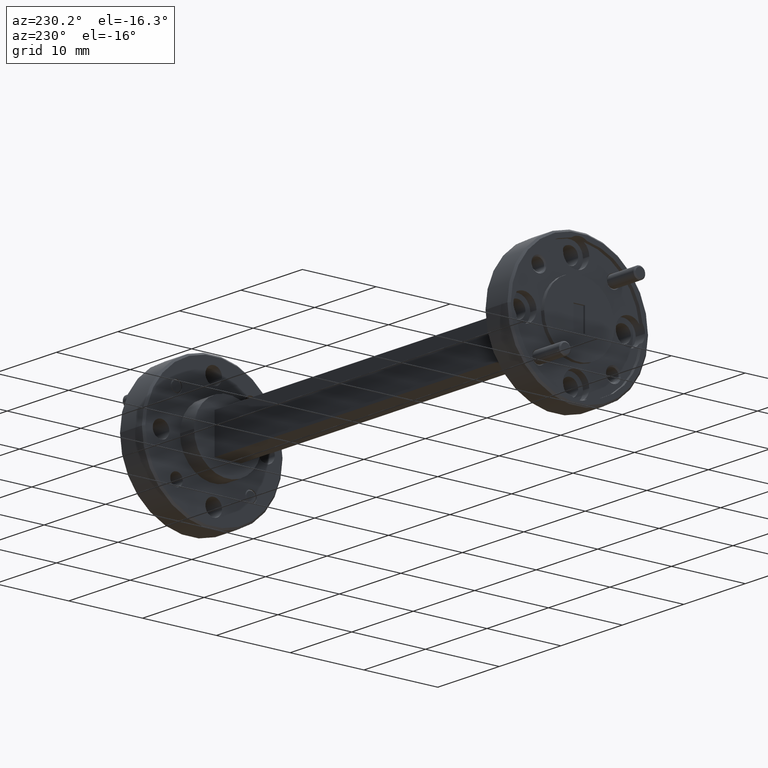
[diagram: clean part render]
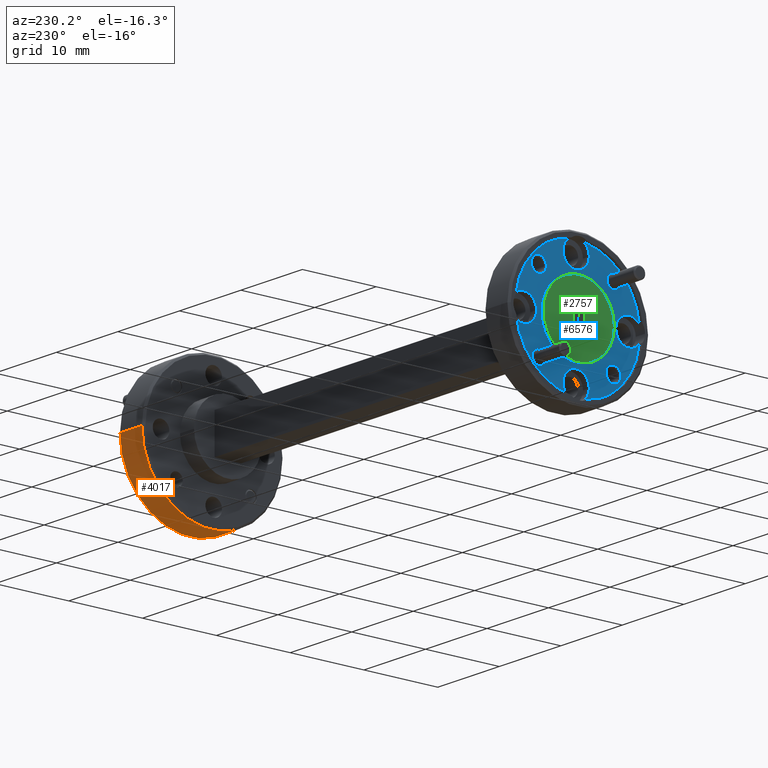
[diagram: same view with three faces highlighted in distinct colors, each labeled with its STEP entity id]
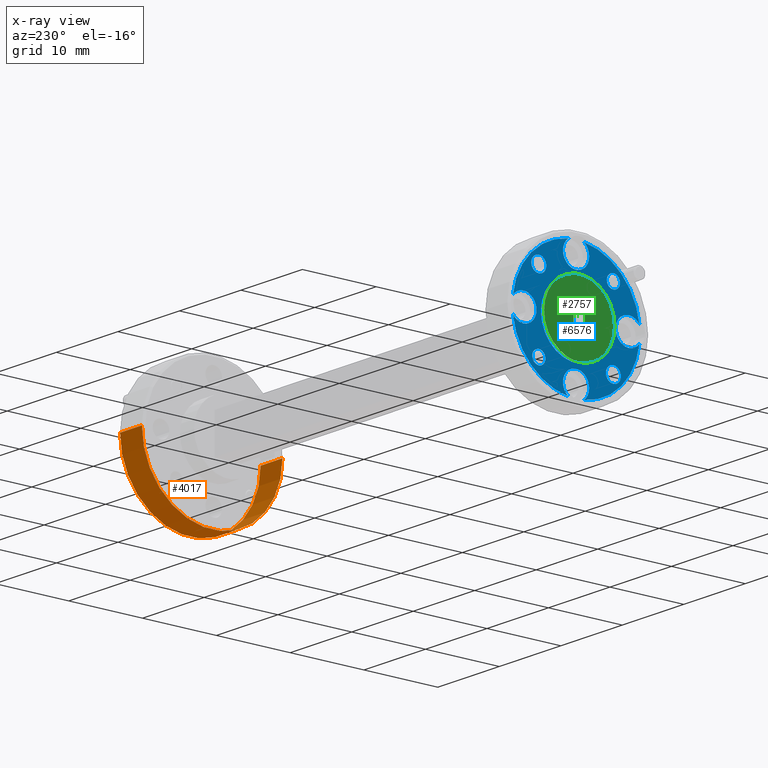
[diagram: x-ray of the same camera — body ghosted, the three highlighted faces saturated]
A machine part, auxiliary view with three faces highlighted in distinct colors.
The next image is the same camera in x-ray (body ghosted, the three faces saturated) — at least one of them is partly hidden behind the body in this view.
Their STEP definitions:

[orange] entity #4017 — the highlighted cylindrical surface (partial cylindrical patch) has radius 9.525 mm, axis along (1, 0, -0).
#542 = EDGE_CURVE ( 'NONE', #3401, #2770, #3679, .T. ) ;
#783 = CYLINDRICAL_SURFACE ( 'NONE', #3634, 0.3749999999999993894 ) ;
#814 = CARTESIAN_POINT ( 'NONE',  ( 1.831945884671742908, 1.715015889200941501, 2.884611598569149393 ) ) ;
#898 = AXIS2_PLACEMENT_3D ( 'NONE', #6566, #3077, #5992 ) ;
#928 = ORIENTED_EDGE ( 'NONE', *, *, #1703, .T. ) ;
#1199 = LINE ( 'NONE', #1878, #2131 ) ;
#1385 = DIRECTION ( 'NONE',  ( 1.000000000000000000, 1.224646799147353454E-16, -0.000000000000000000 ) ) ;
#1389 = DIRECTION ( 'NONE',  ( 0.000000000000000000, 1.000000000000000000, 0.000000000000000000 ) ) ;
#1703 = EDGE_CURVE ( 'NONE', #2770, #7430, #1199, .T. ) ;
#1878 = CARTESIAN_POINT ( 'NONE',  ( -0.6580541153284433786, 2.465015889200940613, 2.884611598569149393 ) ) ;
#2031 = CARTESIAN_POINT ( 'NONE',  ( 1.831945884671742908, 2.465015889200941057, 2.884611598569149393 ) ) ;
#2131 = VECTOR ( 'NONE', #2355, 39.37007874015748143 ) ;
#2355 = DIRECTION ( 'NONE',  ( 1.000000000000000000, 1.224646799147353454E-16, -0.000000000000000000 ) ) ;
#2408 = AXIS2_PLACEMENT_3D ( 'NONE', #5187, #4016, #6391 ) ;
#2770 = VERTEX_POINT ( 'NONE', #6960 ) ;
#2811 = ORIENTED_EDGE ( 'NONE', *, *, #5194, .F. ) ;
#2902 = ORIENTED_EDGE ( 'NONE', *, *, #542, .T. ) ;
#3070 = EDGE_CURVE ( 'NONE', #7430, #5867, #4225, .T. ) ;
#3077 = DIRECTION ( 'NONE',  ( 1.000000000000000000, 1.224646799147367998E-16, -0.000000000000000000 ) ) ;
#3401 = VERTEX_POINT ( 'NONE', #3962 ) ;
#3634 = AXIS2_PLACEMENT_3D ( 'NONE', #4275, #6569, #1389 ) ;
#3675 = ORIENTED_EDGE ( 'NONE', *, *, #3070, .T. ) ;
#3679 = CIRCLE ( 'NONE', #898, 0.3749999999999996669 ) ;
#3712 = FACE_OUTER_BOUND ( 'NONE', #6399, .T. ) ;
#3962 = CARTESIAN_POINT ( 'NONE',  ( 1.691945884671743228, 1.715015889200941501, 2.884611598569149393 ) ) ;
#4016 = DIRECTION ( 'NONE',  ( -1.000000000000000000, -1.224646799147307355E-16, 0.000000000000000000 ) ) ;
#4017 = ADVANCED_FACE ( 'NONE', ( #3712 ), #783, .T. ) ;
#4151 = VECTOR ( 'NONE', #1385, 39.37007874015748143 ) ;
#4222 = LINE ( 'NONE', #4926, #4151 ) ;
#4225 = CIRCLE ( 'NONE', #2408, 0.3749999999999996669 ) ;
#4275 = CARTESIAN_POINT ( 'NONE',  ( -0.6580541153284433786, 2.090015889200941057, 2.884611598569149393 ) ) ;
#4926 = CARTESIAN_POINT ( 'NONE',  ( -0.6580541153284433786, 1.715015889200941501, 2.884611598569149393 ) ) ;
#5187 = CARTESIAN_POINT ( 'NONE',  ( 1.831945884671742908, 2.090015889200941057, 2.884611598569149393 ) ) ;
#5194 = EDGE_CURVE ( 'NONE', #3401, #5867, #4222, .T. ) ;
#5867 = VERTEX_POINT ( 'NONE', #814 ) ;
#5992 = DIRECTION ( 'NONE',  ( 0.000000000000000000, -1.000000000000000000, 0.000000000000000000 ) ) ;
#6391 = DIRECTION ( 'NONE',  ( 0.000000000000000000, 1.000000000000000000, 0.000000000000000000 ) ) ;
#6399 = EDGE_LOOP ( 'NONE', ( #2811, #2902, #928, #3675 ) ) ;
#6566 = CARTESIAN_POINT ( 'NONE',  ( 1.691945884671743228, 2.090015889200941057, 2.884611598569149393 ) ) ;
#6569 = DIRECTION ( 'NONE',  ( 1.000000000000000000, 1.224646799147353454E-16, -0.000000000000000000 ) ) ;
#6960 = CARTESIAN_POINT ( 'NONE',  ( 1.691945884671743228, 2.465015889200941057, 2.884611598569149393 ) ) ;
#7430 = VERTEX_POINT ( 'NONE', #2031 ) ;

[blue] entity #6576 — the highlighted planar face has unit normal (-1, -0, 0).
#18 = ORIENTED_EDGE ( 'NONE', *, *, #6635, .F. ) ;
#38 = DIRECTION ( 'NONE',  ( 0.000000000000000000, 1.000000000000000000, 0.000000000000000000 ) ) ;
#56 = DIRECTION ( 'NONE',  ( 0.000000000000000000, -1.000000000000000000, 0.000000000000000000 ) ) ;
#59 = VERTEX_POINT ( 'NONE', #2693 ) ;
#72 = DIRECTION ( 'NONE',  ( 1.000000000000000000, 1.224646799147353454E-16, -0.000000000000000000 ) ) ;
#83 = CARTESIAN_POINT ( 'NONE',  ( -0.6380541153282570654, 2.427440889200940699, 2.926377246834200641 ) ) ;
#124 = VERTEX_POINT ( 'NONE', #1889 ) ;
#145 = EDGE_CURVE ( 'NONE', #3553, #5614, #5394, .T. ) ;
#147 = CARTESIAN_POINT ( 'NONE',  ( -0.6380541153282570654, 2.131781537465992304, 3.222036598569149035 ) ) ;
#292 = CIRCLE ( 'NONE', #6572, 0.04000000000000011879 ) ;
#318 = EDGE_CURVE ( 'NONE', #3001, #2302, #4430, .T. ) ;
#410 = DIRECTION ( 'NONE',  ( 0.000000000000000000, 1.000000000000000000, 0.000000000000000000 ) ) ;
#414 = DIRECTION ( 'NONE',  ( 0.000000000000000000, 1.000000000000000000, 0.000000000000000000 ) ) ;
#428 = EDGE_CURVE ( 'NONE', #4018, #1740, #791, .T. ) ;
#444 = ORIENTED_EDGE ( 'NONE', *, *, #2659, .F. ) ;
#449 = AXIS2_PLACEMENT_3D ( 'NONE', #771, #5390, #56 ) ;
#488 = DIRECTION ( 'NONE',  ( -1.000000000000000000, -1.224646799147353454E-16, 0.000000000000000000 ) ) ;
#577 = EDGE_CURVE ( 'NONE', #1740, #4018, #6588, .T. ) ;
#771 = CARTESIAN_POINT ( 'NONE',  ( -0.6380541153282570654, 2.090015889200941057, 3.165861598569149393 ) ) ;
#791 = CIRCLE ( 'NONE', #5852, 0.04000000000000011879 ) ;
#840 = AXIS2_PLACEMENT_3D ( 'NONE', #1066, #2828, #6387 ) ;
#848 = CARTESIAN_POINT ( 'NONE',  ( -0.6380541153282570654, 2.277515889200940613, 2.884611598569149393 ) ) ;
#962 = EDGE_CURVE ( 'NONE', #2062, #3355, #5576, .T. ) ;
#992 = CARTESIAN_POINT ( 'NONE',  ( -0.6380541153282570654, 2.090015889200941057, 3.165861598569149393 ) ) ;
#1066 = CARTESIAN_POINT ( 'NONE',  ( -0.6380541153282570654, 2.371265889200941057, 2.884611598569149393 ) ) ;
#1073 = AXIS2_PLACEMENT_3D ( 'NONE', #3600, #7092, #3759 ) ;
#1091 = CARTESIAN_POINT ( 'NONE',  ( -0.6380541153282578426, 1.891142106992224070, 2.725737816360433552 ) ) ;
#1118 = EDGE_LOOP ( 'NONE', ( #444, #3316 ) ) ;
#1124 = EDGE_CURVE ( 'NONE', #1792, #7329, #6427, .T. ) ;
#1141 = CARTESIAN_POINT ( 'NONE',  ( -0.6380541153282570654, 2.090015889200941057, 2.884611598569149393 ) ) ;
#1163 = EDGE_CURVE ( 'NONE', #124, #3895, #5110, .T. ) ;
#1169 = VERTEX_POINT ( 'NONE', #7486 ) ;
#1183 = EDGE_CURVE ( 'NONE', #4081, #7367, #5328, .T. ) ;
#1208 = AXIS2_PLACEMENT_3D ( 'NONE', #2448, #1350, #6027 ) ;
#1212 = VERTEX_POINT ( 'NONE', #1726 ) ;
#1223 = CARTESIAN_POINT ( 'NONE',  ( -0.6380541153282570654, 2.048250240935888922, 2.547186598569149307 ) ) ;
#1256 = CARTESIAN_POINT ( 'NONE',  ( -0.6380541153282570654, 1.808765889200941057, 2.884611598569149393 ) ) ;
#1290 = DIRECTION ( 'NONE',  ( -1.000000000000000000, -1.224646799147353454E-16, 0.000000000000000000 ) ) ;
#1297 = ORIENTED_EDGE ( 'NONE', *, *, #7365, .T. ) ;
#1340 = VERTEX_POINT ( 'NONE', #5165 ) ;
#1349 = EDGE_CURVE ( 'NONE', #59, #1169, #3447, .T. ) ;
#1350 = DIRECTION ( 'NONE',  ( -1.000000000000000000, -1.224646799147353454E-16, 0.000000000000000000 ) ) ;
#1356 = PLANE ( 'NONE',  #5549 ) ;
#1392 = AXIS2_PLACEMENT_3D ( 'NONE', #4790, #4128, #1845 ) ;
#1411 = EDGE_CURVE ( 'NONE', #5157, #59, #5876, .T. ) ;
#1472 = EDGE_LOOP ( 'NONE', ( #1297, #2369 ) ) ;
#1504 = DIRECTION ( 'NONE',  ( -1.000000000000000000, -1.224646799147353454E-16, 0.000000000000000000 ) ) ;
#1532 = AXIS2_PLACEMENT_3D ( 'NONE', #4375, #7385, #2763 ) ;
#1583 = AXIS2_PLACEMENT_3D ( 'NONE', #4596, #5250, #6948 ) ;
#1605 = DIRECTION ( 'NONE',  ( 0.000000000000000000, 0.000000000000000000, 1.000000000000000000 ) ) ;
#1655 = VERTEX_POINT ( 'NONE', #83 ) ;
#1683 = DIRECTION ( 'NONE',  ( 0.000000000000000000, 0.000000000000000000, 1.000000000000000000 ) ) ;
#1726 = CARTESIAN_POINT ( 'NONE',  ( -0.6380541153282570654, 2.020015889200940773, 3.165861598569149393 ) ) ;
#1740 = VERTEX_POINT ( 'NONE', #2312 ) ;
#1757 = CARTESIAN_POINT ( 'NONE',  ( -0.6380541153282570654, 2.020015889200940773, 2.603361598569148949 ) ) ;
#1786 = EDGE_LOOP ( 'NONE', ( #2497, #3606 ) ) ;
#1792 = VERTEX_POINT ( 'NONE', #6039 ) ;
#1845 = DIRECTION ( 'NONE',  ( 0.000000000000000000, 0.000000000000000000, 1.000000000000000000 ) ) ;
#1856 = DIRECTION ( 'NONE',  ( -1.000000000000000000, -1.224646799147353454E-16, 0.000000000000000000 ) ) ;
#1881 = CIRCLE ( 'NONE', #1532, 0.03500000000000003803 ) ;
#1889 = CARTESIAN_POINT ( 'NONE',  ( -0.6380541153282578426, 1.891142106992224070, 3.048485380777865128 ) ) ;
#1931 = EDGE_CURVE ( 'NONE', #1212, #1792, #3493, .T. ) ;
#2038 = ORIENTED_EDGE ( 'NONE', *, *, #2327, .F. ) ;
#2049 = AXIS2_PLACEMENT_3D ( 'NONE', #992, #1504, #3264 ) ;
#2062 = VERTEX_POINT ( 'NONE', #6311 ) ;
#2302 = VERTEX_POINT ( 'NONE', #5607 ) ;
#2312 = CARTESIAN_POINT ( 'NONE',  ( -0.6380541153282578426, 1.891142106992224070, 2.645737816360433037 ) ) ;
#2327 = EDGE_CURVE ( 'NONE', #1340, #4660, #7491, .T. ) ;
#2369 = ORIENTED_EDGE ( 'NONE', *, *, #3419, .T. ) ;
#2400 = CARTESIAN_POINT ( 'NONE',  ( -0.6380541153282570654, 1.752590889200941193, 2.926377246834200641 ) ) ;
#2448 = CARTESIAN_POINT ( 'NONE',  ( -0.6380541153282570654, 2.090015889200941057, 2.603361598569148949 ) ) ;
#2454 = VERTEX_POINT ( 'NONE', #848 ) ;
#2477 = VERTEX_POINT ( 'NONE', #2847 ) ;
#2485 = CARTESIAN_POINT ( 'NONE',  ( -0.6380541153282578426, 1.891142106992224070, 2.685737816360433072 ) ) ;
#2497 = ORIENTED_EDGE ( 'NONE', *, *, #3969, .F. ) ;
#2533 = EDGE_CURVE ( 'NONE', #7367, #1655, #5347, .T. ) ;
#2558 = EDGE_CURVE ( 'NONE', #5614, #1212, #4996, .T. ) ;
#2589 = ORIENTED_EDGE ( 'NONE', *, *, #3897, .F. ) ;
#2659 = EDGE_CURVE ( 'NONE', #3895, #124, #1881, .T. ) ;
#2661 = CIRCLE ( 'NONE', #1208, 0.07000000000000007605 ) ;
#2681 = CARTESIAN_POINT ( 'NONE',  ( -0.6380541153282570654, 2.090015889200941057, 2.884611598569149393 ) ) ;
#2682 = DIRECTION ( 'NONE',  ( 0.000000000000000000, 1.000000000000000000, 0.000000000000000000 ) ) ;
#2691 = CARTESIAN_POINT ( 'NONE',  ( -0.6380541153282578426, 2.288889671409657822, 2.685737816360433072 ) ) ;
#2693 = CARTESIAN_POINT ( 'NONE',  ( -0.6380541153282570654, 2.160015889200940897, 2.603361598569148949 ) ) ;
#2763 = DIRECTION ( 'NONE',  ( 0.000000000000000000, 0.000000000000000000, 1.000000000000000000 ) ) ;
#2828 = DIRECTION ( 'NONE',  ( -1.000000000000000000, -1.224646799147353454E-16, 0.000000000000000000 ) ) ;
#2834 = ORIENTED_EDGE ( 'NONE', *, *, #3612, .F. ) ;
#2847 = CARTESIAN_POINT ( 'NONE',  ( -0.6380541153282570654, 1.902515889200941057, 2.884611598569149393 ) ) ;
#2867 = DIRECTION ( 'NONE',  ( -1.000000000000000000, -0.000000000000000000, -0.000000000000000000 ) ) ;
#3001 = VERTEX_POINT ( 'NONE', #5554 ) ;
#3146 = AXIS2_PLACEMENT_3D ( 'NONE', #7449, #72, #38 ) ;
#3249 = CIRCLE ( 'NONE', #7008, 0.3399999999999999134 ) ;
#3260 = AXIS2_PLACEMENT_3D ( 'NONE', #1256, #4149, #6452 ) ;
#3261 = CARTESIAN_POINT ( 'NONE',  ( -0.6380541153282570654, 2.090015889200941057, 2.884611598569149393 ) ) ;
#3264 = DIRECTION ( 'NONE',  ( 0.000000000000000000, -1.000000000000000000, 0.000000000000000000 ) ) ;
#3276 = CARTESIAN_POINT ( 'NONE',  ( -0.6380541153282570654, 1.878765889200941119, 2.884611598569149393 ) ) ;
#3316 = ORIENTED_EDGE ( 'NONE', *, *, #1163, .F. ) ;
#3317 = AXIS2_PLACEMENT_3D ( 'NONE', #2485, #4807, #7088 ) ;
#3355 = VERTEX_POINT ( 'NONE', #5694 ) ;
#3359 = DIRECTION ( 'NONE',  ( 1.000000000000000000, 1.224646799147353454E-16, -0.000000000000000000 ) ) ;
#3414 = ORIENTED_EDGE ( 'NONE', *, *, #1124, .F. ) ;
#3419 = EDGE_CURVE ( 'NONE', #2477, #2454, #5443, .T. ) ;
#3432 = CARTESIAN_POINT ( 'NONE',  ( -0.6380541153282570654, 2.427440889200940699, 2.842845950304097702 ) ) ;
#3447 = CIRCLE ( 'NONE', #4075, 0.07000000000000007605 ) ;
#3455 = ORIENTED_EDGE ( 'NONE', *, *, #3578, .F. ) ;
#3478 = ORIENTED_EDGE ( 'NONE', *, *, #3724, .F. ) ;
#3493 = CIRCLE ( 'NONE', #2049, 0.07000000000000007605 ) ;
#3512 = DIRECTION ( 'NONE',  ( 0.000000000000000000, -1.000000000000000000, 0.000000000000000000 ) ) ;
#3548 = ORIENTED_EDGE ( 'NONE', *, *, #1411, .F. ) ;
#3553 = VERTEX_POINT ( 'NONE', #147 ) ;
#3578 = EDGE_CURVE ( 'NONE', #4493, #1340, #5920, .T. ) ;
#3586 = DIRECTION ( 'NONE',  ( 0.000000000000000000, -1.000000000000000000, 0.000000000000000000 ) ) ;
#3600 = CARTESIAN_POINT ( 'NONE',  ( -0.6380541153282570654, 1.808765889200941057, 2.884611598569149393 ) ) ;
#3606 = ORIENTED_EDGE ( 'NONE', *, *, #962, .F. ) ;
#3609 = FACE_BOUND ( 'NONE', #1472, .T. ) ;
#3612 = EDGE_CURVE ( 'NONE', #4660, #5157, #2661, .T. ) ;
#3626 = CIRCLE ( 'NONE', #3260, 0.07000000000000007605 ) ;
#3632 = CARTESIAN_POINT ( 'NONE',  ( -0.6380541153282570654, 2.090015889200941057, 3.165861598569149393 ) ) ;
#3702 = DIRECTION ( 'NONE',  ( 0.000000000000000000, -1.000000000000000000, 0.000000000000000000 ) ) ;
#3721 = AXIS2_PLACEMENT_3D ( 'NONE', #1141, #3359, #410 ) ;
#3724 = EDGE_CURVE ( 'NONE', #1655, #3553, #7246, .T. ) ;
#3759 = DIRECTION ( 'NONE',  ( 0.000000000000000000, -1.000000000000000000, 0.000000000000000000 ) ) ;
#3895 = VERTEX_POINT ( 'NONE', #4770 ) ;
#3897 = EDGE_CURVE ( 'NONE', #7329, #4493, #3626, .T. ) ;
#3969 = EDGE_CURVE ( 'NONE', #3355, #2062, #4005, .T. ) ;
#3996 = ORIENTED_EDGE ( 'NONE', *, *, #2558, .F. ) ;
#4005 = CIRCLE ( 'NONE', #1583, 0.03500000000000003803 ) ;
#4018 = VERTEX_POINT ( 'NONE', #1091 ) ;
#4019 = AXIS2_PLACEMENT_3D ( 'NONE', #3632, #1856, #3586 ) ;
#4073 = DIRECTION ( 'NONE',  ( 0.000000000000000000, 0.000000000000000000, 1.000000000000000000 ) ) ;
#4075 = AXIS2_PLACEMENT_3D ( 'NONE', #7469, #5756, #5199 ) ;
#4081 = VERTEX_POINT ( 'NONE', #3432 ) ;
#4093 = DIRECTION ( 'NONE',  ( -1.000000000000000000, -1.224646799147353454E-16, 0.000000000000000000 ) ) ;
#4112 = CARTESIAN_POINT ( 'NONE',  ( -0.6380541153282578426, 1.891142106992224070, 3.083485380777865270 ) ) ;
#4128 = DIRECTION ( 'NONE',  ( -1.000000000000000000, -0.000000000000000000, -0.000000000000000000 ) ) ;
#4149 = DIRECTION ( 'NONE',  ( -1.000000000000000000, -1.224646799147353454E-16, 0.000000000000000000 ) ) ;
#4263 = ORIENTED_EDGE ( 'NONE', *, *, #428, .F. ) ;
#4284 = FACE_BOUND ( 'NONE', #1118, .T. ) ;
#4327 = ORIENTED_EDGE ( 'NONE', *, *, #4902, .F. ) ;
#4336 = DIRECTION ( 'NONE',  ( 1.000000000000000000, 1.224646799147353454E-16, -0.000000000000000000 ) ) ;
#4375 = CARTESIAN_POINT ( 'NONE',  ( -0.6380541153282578426, 1.891142106992224070, 3.083485380777865270 ) ) ;
#4423 = EDGE_LOOP ( 'NONE', ( #4327, #7358 ) ) ;
#4430 = CIRCLE ( 'NONE', #1392, 0.04000000000000011879 ) ;
#4441 = DIRECTION ( 'NONE',  ( 1.000000000000000000, 1.224646799147353454E-16, -0.000000000000000000 ) ) ;
#4493 = VERTEX_POINT ( 'NONE', #3276 ) ;
#4506 = CARTESIAN_POINT ( 'NONE',  ( -0.6380541153282578426, 2.288889671409657822, 3.083485380777865270 ) ) ;
#4593 = CARTESIAN_POINT ( 'NONE',  ( -0.6380541153282578426, 1.891142106992224070, 2.685737816360433072 ) ) ;
#4596 = CARTESIAN_POINT ( 'NONE',  ( -0.6380541153282578426, 2.288889671409657822, 2.685737816360433072 ) ) ;
#4639 = DIRECTION ( 'NONE',  ( -1.000000000000000000, -0.000000000000000000, -0.000000000000000000 ) ) ;
#4660 = VERTEX_POINT ( 'NONE', #1223 ) ;
#4770 = CARTESIAN_POINT ( 'NONE',  ( -0.6380541153282578426, 1.891142106992224070, 3.118485380777865412 ) ) ;
#4790 = CARTESIAN_POINT ( 'NONE',  ( -0.6380541153282578426, 2.288889671409657822, 3.083485380777865270 ) ) ;
#4807 = DIRECTION ( 'NONE',  ( -1.000000000000000000, -0.000000000000000000, -0.000000000000000000 ) ) ;
#4833 = CARTESIAN_POINT ( 'NONE',  ( -0.6380541153282570654, 2.160015889200940897, 3.165861598569149393 ) ) ;
#4848 = FACE_BOUND ( 'NONE', #5147, .T. ) ;
#4870 = CARTESIAN_POINT ( 'NONE',  ( -0.6380541153282570654, 2.301265889200940773, 2.884611598569149393 ) ) ;
#4898 = FACE_BOUND ( 'NONE', #4423, .T. ) ;
#4902 = EDGE_CURVE ( 'NONE', #2302, #3001, #292, .T. ) ;
#4940 = ORIENTED_EDGE ( 'NONE', *, *, #2533, .F. ) ;
#4948 = CARTESIAN_POINT ( 'NONE',  ( -0.6380541153282570654, 2.090015889200941057, 2.884611598569149393 ) ) ;
#4996 = CIRCLE ( 'NONE', #4019, 0.07000000000000007605 ) ;
#5075 = DIRECTION ( 'NONE',  ( 1.000000000000000000, 1.224646799147353454E-16, -0.000000000000000000 ) ) ;
#5110 = CIRCLE ( 'NONE', #7010, 0.03500000000000003803 ) ;
#5147 = EDGE_LOOP ( 'NONE', ( #4263, #6117 ) ) ;
#5157 = VERTEX_POINT ( 'NONE', #1757 ) ;
#5165 = CARTESIAN_POINT ( 'NONE',  ( -0.6380541153282570654, 1.752590889200941193, 2.842845950304097702 ) ) ;
#5199 = DIRECTION ( 'NONE',  ( 0.000000000000000000, -1.000000000000000000, 0.000000000000000000 ) ) ;
#5250 = DIRECTION ( 'NONE',  ( -1.000000000000000000, -0.000000000000000000, -0.000000000000000000 ) ) ;
#5275 = CARTESIAN_POINT ( 'NONE',  ( -0.6380541153282570654, 2.090015889200941057, 2.603361598569148949 ) ) ;
#5328 = CIRCLE ( 'NONE', #840, 0.07000000000000007605 ) ;
#5344 = AXIS2_PLACEMENT_3D ( 'NONE', #2691, #2867, #6469 ) ;
#5347 = CIRCLE ( 'NONE', #6175, 0.07000000000000007605 ) ;
#5349 = AXIS2_PLACEMENT_3D ( 'NONE', #4948, #4336, #7222 ) ;
#5390 = DIRECTION ( 'NONE',  ( -1.000000000000000000, -1.224646799147353454E-16, 0.000000000000000000 ) ) ;
#5394 = CIRCLE ( 'NONE', #449, 0.07000000000000007605 ) ;
#5443 = CIRCLE ( 'NONE', #6409, 0.1874999999999998335 ) ;
#5444 = FACE_OUTER_BOUND ( 'NONE', #6043, .T. ) ;
#5549 = AXIS2_PLACEMENT_3D ( 'NONE', #5933, #488, #7407 ) ;
#5554 = CARTESIAN_POINT ( 'NONE',  ( -0.6380541153282578426, 2.288889671409657822, 3.043485380777865235 ) ) ;
#5576 = CIRCLE ( 'NONE', #5344, 0.03500000000000003803 ) ;
#5577 = DIRECTION ( 'NONE',  ( 1.000000000000000000, 1.224646799147353454E-16, -0.000000000000000000 ) ) ;
#5607 = CARTESIAN_POINT ( 'NONE',  ( -0.6380541153282578426, 2.288889671409657822, 3.123485380777865306 ) ) ;
#5614 = VERTEX_POINT ( 'NONE', #4833 ) ;
#5694 = CARTESIAN_POINT ( 'NONE',  ( -0.6380541153282578426, 2.288889671409657822, 2.720737816360433214 ) ) ;
#5756 = DIRECTION ( 'NONE',  ( -1.000000000000000000, -1.224646799147353454E-16, 0.000000000000000000 ) ) ;
#5852 = AXIS2_PLACEMENT_3D ( 'NONE', #4593, #6416, #4073 ) ;
#5876 = CIRCLE ( 'NONE', #7457, 0.07000000000000007605 ) ;
#5920 = CIRCLE ( 'NONE', #1073, 0.07000000000000007605 ) ;
#5933 = CARTESIAN_POINT ( 'NONE',  ( -0.6380541153282570654, 2.277515889200940613, 2.884611598569149393 ) ) ;
#6027 = DIRECTION ( 'NONE',  ( 0.000000000000000000, -1.000000000000000000, 0.000000000000000000 ) ) ;
#6039 = CARTESIAN_POINT ( 'NONE',  ( -0.6380541153282570654, 2.048250240935889810, 3.222036598569149035 ) ) ;
#6043 = EDGE_LOOP ( 'NONE', ( #2834, #2038, #3455, #2589, #3414, #6224, #3996, #7451, #3478, #4940, #7285, #18, #7347, #3548 ) ) ;
#6117 = ORIENTED_EDGE ( 'NONE', *, *, #577, .F. ) ;
#6175 = AXIS2_PLACEMENT_3D ( 'NONE', #7190, #1290, #3702 ) ;
#6224 = ORIENTED_EDGE ( 'NONE', *, *, #1931, .F. ) ;
#6267 = CARTESIAN_POINT ( 'NONE',  ( -0.6380541153282570654, 2.090015889200941057, 2.884611598569149393 ) ) ;
#6311 = CARTESIAN_POINT ( 'NONE',  ( -0.6380541153282578426, 2.288889671409657822, 2.650737816360433374 ) ) ;
#6387 = DIRECTION ( 'NONE',  ( 0.000000000000000000, -1.000000000000000000, 0.000000000000000000 ) ) ;
#6409 = AXIS2_PLACEMENT_3D ( 'NONE', #2681, #4441, #6722 ) ;
#6416 = DIRECTION ( 'NONE',  ( -1.000000000000000000, -0.000000000000000000, -0.000000000000000000 ) ) ;
#6427 = CIRCLE ( 'NONE', #3146, 0.3399999999999999134 ) ;
#6452 = DIRECTION ( 'NONE',  ( 0.000000000000000000, -1.000000000000000000, 0.000000000000000000 ) ) ;
#6469 = DIRECTION ( 'NONE',  ( 0.000000000000000000, 0.000000000000000000, 1.000000000000000000 ) ) ;
#6572 = AXIS2_PLACEMENT_3D ( 'NONE', #4506, #6792, #1605 ) ;
#6576 = ADVANCED_FACE ( 'NONE', ( #5444, #4848, #4898, #7133, #4284, #3609 ), #1356, .T. ) ;
#6588 = CIRCLE ( 'NONE', #3317, 0.04000000000000011879 ) ;
#6635 = EDGE_CURVE ( 'NONE', #1169, #4081, #3249, .T. ) ;
#6650 = AXIS2_PLACEMENT_3D ( 'NONE', #3261, #5577, #414 ) ;
#6722 = DIRECTION ( 'NONE',  ( 0.000000000000000000, 1.000000000000000000, 0.000000000000000000 ) ) ;
#6789 = CIRCLE ( 'NONE', #5349, 0.1874999999999998335 ) ;
#6792 = DIRECTION ( 'NONE',  ( -1.000000000000000000, -0.000000000000000000, -0.000000000000000000 ) ) ;
#6948 = DIRECTION ( 'NONE',  ( 0.000000000000000000, 0.000000000000000000, 1.000000000000000000 ) ) ;
#7008 = AXIS2_PLACEMENT_3D ( 'NONE', #6267, #5075, #2682 ) ;
#7010 = AXIS2_PLACEMENT_3D ( 'NONE', #4112, #4639, #1683 ) ;
#7088 = DIRECTION ( 'NONE',  ( 0.000000000000000000, 0.000000000000000000, 1.000000000000000000 ) ) ;
#7092 = DIRECTION ( 'NONE',  ( -1.000000000000000000, -1.224646799147353454E-16, 0.000000000000000000 ) ) ;
#7133 = FACE_BOUND ( 'NONE', #1786, .T. ) ;
#7190 = CARTESIAN_POINT ( 'NONE',  ( -0.6380541153282570654, 2.371265889200941057, 2.884611598569149393 ) ) ;
#7222 = DIRECTION ( 'NONE',  ( 0.000000000000000000, 1.000000000000000000, 0.000000000000000000 ) ) ;
#7246 = CIRCLE ( 'NONE', #6650, 0.3399999999999999134 ) ;
#7285 = ORIENTED_EDGE ( 'NONE', *, *, #1183, .F. ) ;
#7329 = VERTEX_POINT ( 'NONE', #2400 ) ;
#7347 = ORIENTED_EDGE ( 'NONE', *, *, #1349, .F. ) ;
#7358 = ORIENTED_EDGE ( 'NONE', *, *, #318, .F. ) ;
#7365 = EDGE_CURVE ( 'NONE', #2454, #2477, #6789, .T. ) ;
#7367 = VERTEX_POINT ( 'NONE', #4870 ) ;
#7385 = DIRECTION ( 'NONE',  ( -1.000000000000000000, -0.000000000000000000, -0.000000000000000000 ) ) ;
#7407 = DIRECTION ( 'NONE',  ( 1.224646799147353454E-16, -1.000000000000000000, 0.000000000000000000 ) ) ;
#7449 = CARTESIAN_POINT ( 'NONE',  ( -0.6380541153282570654, 2.090015889200941057, 2.884611598569149393 ) ) ;
#7451 = ORIENTED_EDGE ( 'NONE', *, *, #145, .F. ) ;
#7457 = AXIS2_PLACEMENT_3D ( 'NONE', #5275, #4093, #3512 ) ;
#7469 = CARTESIAN_POINT ( 'NONE',  ( -0.6380541153282570654, 2.090015889200941057, 2.603361598569148949 ) ) ;
#7486 = CARTESIAN_POINT ( 'NONE',  ( -0.6380541153282570654, 2.131781537465992749, 2.547186598569149307 ) ) ;
#7491 = CIRCLE ( 'NONE', #3721, 0.3399999999999999134 ) ;

[green] entity #2757 — the highlighted planar face has unit normal (-1, -0, 0).
#369 = CARTESIAN_POINT ( 'NONE',  ( -0.6580541153282570832, 2.120515889200941029, 2.823611598569149006 ) ) ;
#418 = VECTOR ( 'NONE', #6715, 39.37007874015748143 ) ;
#556 = VERTEX_POINT ( 'NONE', #5316 ) ;
#650 = VECTOR ( 'NONE', #6024, 39.37007874015748143 ) ;
#758 = VERTEX_POINT ( 'NONE', #5013 ) ;
#807 = LINE ( 'NONE', #7085, #4548 ) ;
#894 = CARTESIAN_POINT ( 'NONE',  ( -0.6580541153282570832, 1.902515889200941057, 2.884611598569149393 ) ) ;
#1121 = ORIENTED_EDGE ( 'NONE', *, *, #5610, .T. ) ;
#1201 = DIRECTION ( 'NONE',  ( -1.000000000000000000, -1.224646799147353454E-16, 0.000000000000000000 ) ) ;
#1689 = VECTOR ( 'NONE', #2103, 39.37007874015748143 ) ;
#1720 = CIRCLE ( 'NONE', #6440, 0.1874999999999998335 ) ;
#1753 = CARTESIAN_POINT ( 'NONE',  ( -0.6580541153282570832, 2.090015889200941057, 2.884611598569149393 ) ) ;
#1773 = FACE_BOUND ( 'NONE', #6965, .T. ) ;
#1783 = DIRECTION ( 'NONE',  ( 1.000000000000000000, 1.224646799147353454E-16, -0.000000000000000000 ) ) ;
#1906 = ORIENTED_EDGE ( 'NONE', *, *, #4984, .F. ) ;
#1907 = EDGE_CURVE ( 'NONE', #2721, #758, #2632, .T. ) ;
#2103 = DIRECTION ( 'NONE',  ( -0.000000000000000000, 1.049634218877150290E-16, -1.000000000000000000 ) ) ;
#2105 = VERTEX_POINT ( 'NONE', #6976 ) ;
#2138 = AXIS2_PLACEMENT_3D ( 'NONE', #3974, #1201, #6329 ) ;
#2160 = CARTESIAN_POINT ( 'NONE',  ( -0.6580541153282570832, 2.059515889200940642, 2.945611598569149336 ) ) ;
#2256 = DIRECTION ( 'NONE',  ( 1.000000000000000000, 1.224646799147353454E-16, -0.000000000000000000 ) ) ;
#2592 = DIRECTION ( 'NONE',  ( 0.000000000000000000, 1.000000000000000000, 0.000000000000000000 ) ) ;
#2632 = LINE ( 'NONE', #3841, #1689 ) ;
#2721 = VERTEX_POINT ( 'NONE', #2160 ) ;
#2757 = ADVANCED_FACE ( 'NONE', ( #1773, #2843 ), #6927, .T. ) ;
#2843 = FACE_OUTER_BOUND ( 'NONE', #6465, .T. ) ;
#3112 = LINE ( 'NONE', #3648, #650 ) ;
#3648 = CARTESIAN_POINT ( 'NONE',  ( -0.6580541153282570832, 2.059515889200940642, 2.945611598569149336 ) ) ;
#3841 = CARTESIAN_POINT ( 'NONE',  ( -0.6580541153282570832, 2.059515889200940642, 2.823611598569149006 ) ) ;
#3974 = CARTESIAN_POINT ( 'NONE',  ( -0.6580541153282570832, 2.090015889200941057, 2.884611598569149393 ) ) ;
#4097 = CARTESIAN_POINT ( 'NONE',  ( -0.6580541153282570832, 2.090015889200941057, 2.884611598569149393 ) ) ;
#4548 = VECTOR ( 'NONE', #2592, 39.37007874015748143 ) ;
#4663 = DIRECTION ( 'NONE',  ( 0.000000000000000000, 1.000000000000000000, 0.000000000000000000 ) ) ;
#4829 = EDGE_CURVE ( 'NONE', #5117, #2721, #3112, .T. ) ;
#4950 = EDGE_CURVE ( 'NONE', #7438, #2105, #5969, .T. ) ;
#4984 = EDGE_CURVE ( 'NONE', #2105, #7438, #1720, .T. ) ;
#5013 = CARTESIAN_POINT ( 'NONE',  ( -0.6580541153282570832, 2.059515889200940642, 2.823611598569149006 ) ) ;
#5117 = VERTEX_POINT ( 'NONE', #6676 ) ;
#5175 = ORIENTED_EDGE ( 'NONE', *, *, #5919, .T. ) ;
#5302 = ORIENTED_EDGE ( 'NONE', *, *, #1907, .T. ) ;
#5316 = CARTESIAN_POINT ( 'NONE',  ( -0.6580541153282570832, 2.120515889200941029, 2.823611598569149006 ) ) ;
#5542 = LINE ( 'NONE', #369, #418 ) ;
#5610 = EDGE_CURVE ( 'NONE', #758, #556, #807, .T. ) ;
#5772 = ORIENTED_EDGE ( 'NONE', *, *, #4829, .T. ) ;
#5919 = EDGE_CURVE ( 'NONE', #556, #5117, #5542, .T. ) ;
#5969 = CIRCLE ( 'NONE', #7170, 0.1874999999999998335 ) ;
#6024 = DIRECTION ( 'NONE',  ( -0.000000000000000000, -1.000000000000000000, -0.000000000000000000 ) ) ;
#6329 = DIRECTION ( 'NONE',  ( 1.224646799147353454E-16, -1.000000000000000000, 0.000000000000000000 ) ) ;
#6440 = AXIS2_PLACEMENT_3D ( 'NONE', #4097, #1783, #4663 ) ;
#6465 = EDGE_LOOP ( 'NONE', ( #1906, #7244 ) ) ;
#6676 = CARTESIAN_POINT ( 'NONE',  ( -0.6580541153282570832, 2.120515889200941029, 2.945611598569149336 ) ) ;
#6715 = DIRECTION ( 'NONE',  ( 0.000000000000000000, -1.399512291836200633E-16, 1.000000000000000000 ) ) ;
#6927 = PLANE ( 'NONE',  #2138 ) ;
#6965 = EDGE_LOOP ( 'NONE', ( #5772, #5302, #1121, #5175 ) ) ;
#6976 = CARTESIAN_POINT ( 'NONE',  ( -0.6580541153282570832, 2.277515889200940613, 2.884611598569149393 ) ) ;
#7007 = DIRECTION ( 'NONE',  ( 0.000000000000000000, 1.000000000000000000, 0.000000000000000000 ) ) ;
#7085 = CARTESIAN_POINT ( 'NONE',  ( -0.6580541153282570832, 2.059515889200940642, 2.823611598569149006 ) ) ;
#7170 = AXIS2_PLACEMENT_3D ( 'NONE', #1753, #2256, #7007 ) ;
#7244 = ORIENTED_EDGE ( 'NONE', *, *, #4950, .F. ) ;
#7438 = VERTEX_POINT ( 'NONE', #894 ) ;